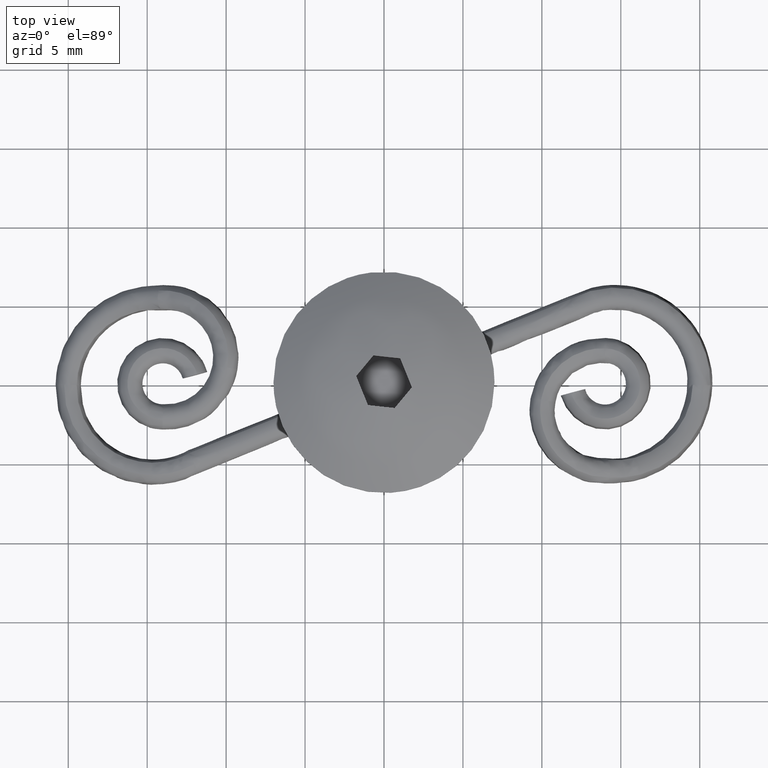
[diagram: clean part render]
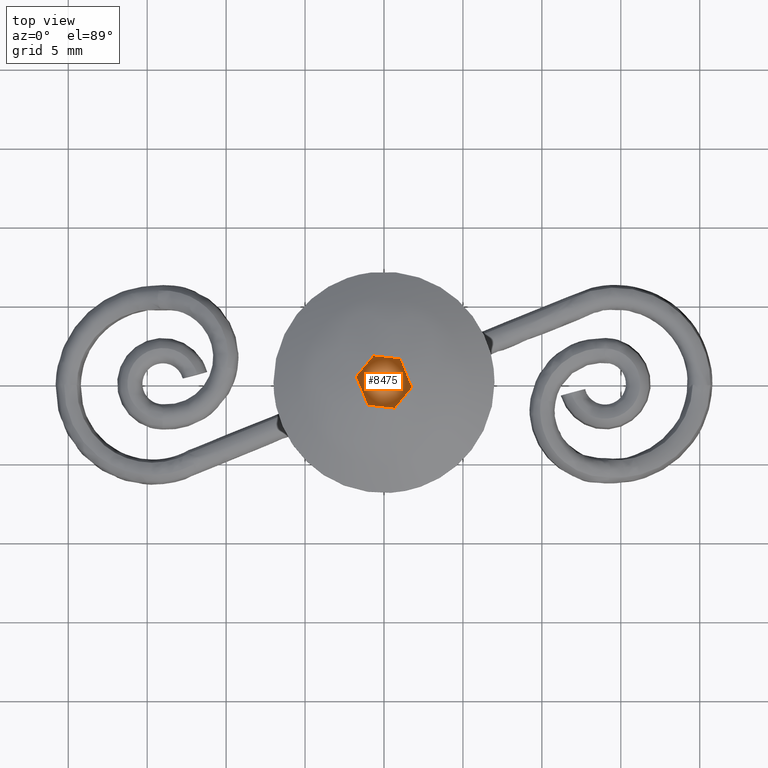
[diagram: same view with one face highlighted and labeled with its STEP entity id]
A machine part, top view. The second image highlights one B-rep face of the part: STEP entity #8475.
In plain terms, the highlighted face is a freeform B-spline surface patch.
Its self-contained STEP definition (entity closure, byte-faithful):
#8426=CARTESIAN_POINT('',(-0.788051481290269,-2.453707359792907,8.754988785359570));
#8427=CARTESIAN_POINT('',(2.271376759379175,-1.217617548481810,8.754988785359570));
#8428=CARTESIAN_POINT('',(-2.271359347696223,1.217606758779162,8.754988785359570));
#8429=CARTESIAN_POINT('',(0.788068892973221,2.453696570090259,8.754988785359570));
#8430=B_SPLINE_SURFACE_WITH_KNOTS('',1,1,((#8426,#8428),(#8427,#8429)),.UNSPECIFIED.,.F.,.F.,.U.,(2,2),(2,2),(0.0,3.299699862325789),(0.0,3.959640082604528),.UNSPECIFIED.);
#8431=CARTESIAN_POINT('',(1.018055489983010,1.484440929750002,8.754988785359570));
#8432=VERTEX_POINT('',#8431);
#8433=CARTESIAN_POINT('',(-0.674283335051241,1.668925421504345,8.754988785359570));
#8434=VERTEX_POINT('',#8433);
#8435=CARTESIAN_POINT('',(1.018055489983010,1.484440929750002,8.754988785359570));
#8436=CARTESIAN_POINT('',(-0.674283335051241,1.668925421504345,8.754988785359570));
#8437=QUASI_UNIFORM_CURVE('',1,(#8435,#8436),.UNSPECIFIED.,.F.,.U.);
#8438=EDGE_CURVE('',#8432,#8434,#8437,.T.);
#8439=ORIENTED_EDGE('',*,*,#8438,.T.);
#8440=CARTESIAN_POINT('',(-1.763495894978115,0.360620707107231,8.754988785359570));
#8441=VERTEX_POINT('',#8440);
#8442=CARTESIAN_POINT('',(-0.674283335051241,1.668925421504345,8.754988785359570));
#8443=CARTESIAN_POINT('',(-1.763495894978115,0.360620707107231,8.754988785359570));
#8444=QUASI_UNIFORM_CURVE('',1,(#8442,#8443),.UNSPECIFIED.,.F.,.U.);
#8445=EDGE_CURVE('',#8434,#8441,#8444,.T.);
#8446=ORIENTED_EDGE('',*,*,#8445,.T.);
#8447=CARTESIAN_POINT('',(-1.018037892914166,-1.484451748694662,8.754988785359570));
#8448=VERTEX_POINT('',#8447);
#8449=CARTESIAN_POINT('',(-1.763495894978115,0.360620707107231,8.754988785359570));
#8450=CARTESIAN_POINT('',(-1.018037892914166,-1.484451748694662,8.754988785359570));
#8451=QUASI_UNIFORM_CURVE('',1,(#8449,#8450),.UNSPECIFIED.,.F.,.U.);
#8452=EDGE_CURVE('',#8441,#8448,#8451,.T.);
#8453=ORIENTED_EDGE('',*,*,#8452,.T.);
#8454=CARTESIAN_POINT('',(0.674300932120085,-1.668936240449005,8.754988785359570));
#8455=VERTEX_POINT('',#8454);
#8456=CARTESIAN_POINT('',(-1.018037892914166,-1.484451748694662,8.754988785359570));
#8457=CARTESIAN_POINT('',(0.674300932120085,-1.668936240449005,8.754988785359570));
#8458=QUASI_UNIFORM_CURVE('',1,(#8456,#8457),.UNSPECIFIED.,.F.,.U.);
#8459=EDGE_CURVE('',#8448,#8455,#8458,.T.);
#8460=ORIENTED_EDGE('',*,*,#8459,.T.);
#8461=CARTESIAN_POINT('',(1.763513492046960,-0.360631526051891,8.754988785359570));
#8462=VERTEX_POINT('',#8461);
#8463=CARTESIAN_POINT('',(0.674300932120085,-1.668936240449005,8.754988785359570));
#8464=CARTESIAN_POINT('',(1.763513492046960,-0.360631526051891,8.754988785359570));
#8465=QUASI_UNIFORM_CURVE('',1,(#8463,#8464),.UNSPECIFIED.,.F.,.U.);
#8466=EDGE_CURVE('',#8455,#8462,#8465,.T.);
#8467=ORIENTED_EDGE('',*,*,#8466,.T.);
#8468=CARTESIAN_POINT('',(1.763513492046960,-0.360631526051891,8.754988785359570));
#8469=CARTESIAN_POINT('',(1.018055489983010,1.484440929750002,8.754988785359570));
#8470=QUASI_UNIFORM_CURVE('',1,(#8468,#8469),.UNSPECIFIED.,.F.,.U.);
#8471=EDGE_CURVE('',#8462,#8432,#8470,.T.);
#8472=ORIENTED_EDGE('',*,*,#8471,.T.);
#8473=EDGE_LOOP('',(#8439,#8446,#8453,#8460,#8467,#8472));
#8474=FACE_OUTER_BOUND('',#8473,.T.);
#8475=ADVANCED_FACE('',(#8474),#8430,.T.);